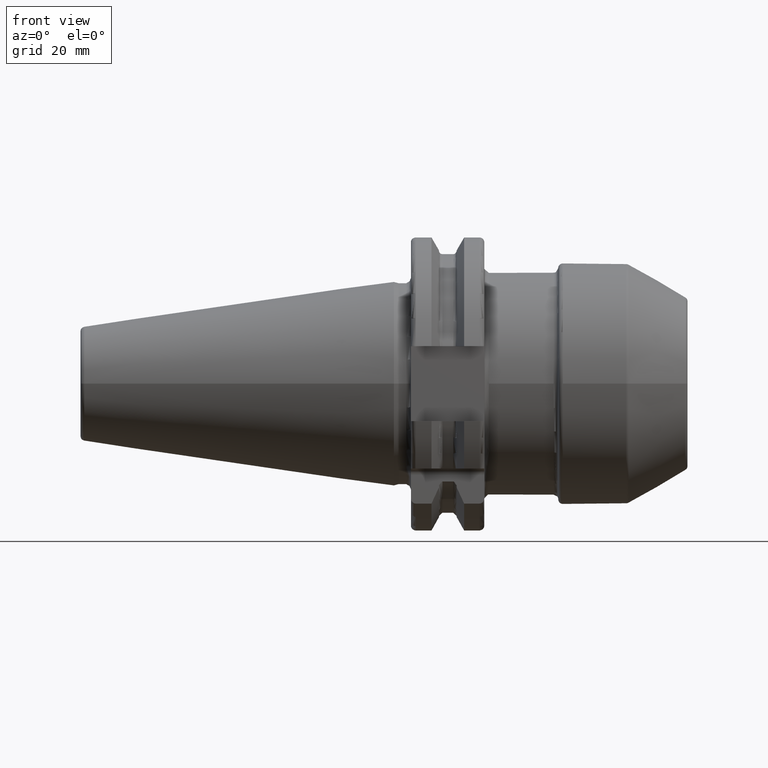
[diagram: clean part render]
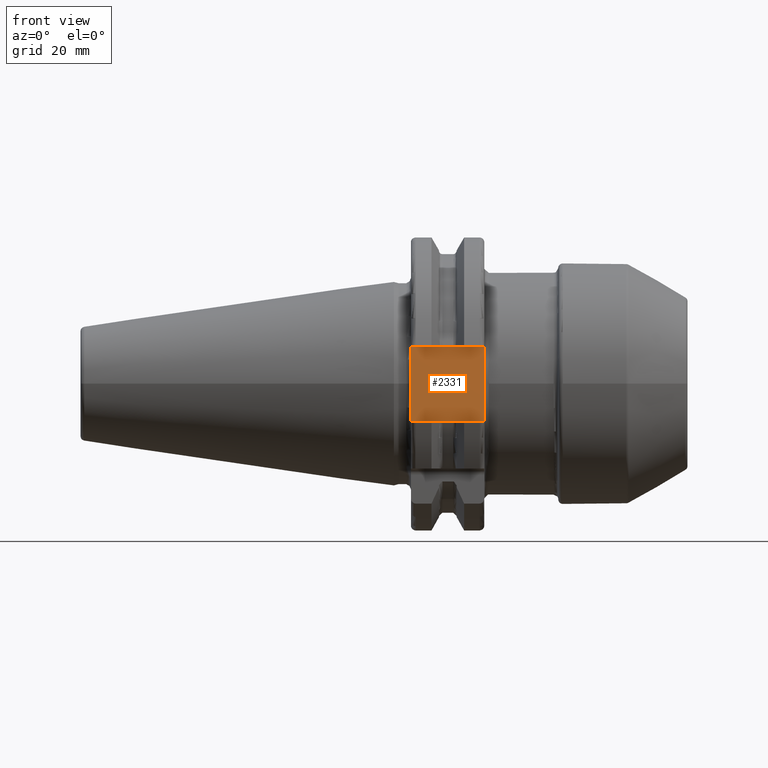
[diagram: same view with one face highlighted and labeled with its STEP entity id]
A machine part, front view. The second image highlights one B-rep face of the part: STEP entity #2331.
In plain terms, the highlighted planar face has unit normal (0, 1, 0).
Its self-contained STEP definition (entity closure, byte-faithful):
#421=DIRECTION('',(0.E0,7.172041620372E-7,9.999999999997E-1));
#422=VECTOR('',#421,5.364916844170E0);
#423=CARTESIAN_POINT('',(1.905E1,-2.485E1,-8.1E0));
#424=LINE('',#423,#422);
#446=DIRECTION('',(0.E0,-1.640553116549E-6,9.999999999987E-1));
#447=VECTOR('',#446,5.368549680093E0);
#448=CARTESIAN_POINT('',(1.905E1,-2.484999119261E1,2.731450319914E0));
#449=LINE('',#448,#447);
#463=DIRECTION('',(-1.E0,0.E0,0.E0));
#464=VECTOR('',#463,1.585E1);
#465=CARTESIAN_POINT('',(1.905E1,-2.485E1,-8.1E0));
#466=LINE('',#465,#464);
#477=CARTESIAN_POINT('',(1.905E1,-2.484999615226E1,-2.735083155832E0));
#478=CARTESIAN_POINT('',(1.905E1,-2.484999615226E1,-2.126118093178E0));
#479=CARTESIAN_POINT('',(1.906190707528E1,-2.485000062129E1,
-9.087239020907E-1));
#480=CARTESIAN_POINT('',(1.906190711665E1,-2.485000359708E1,9.099307624885E-1));
#481=CARTESIAN_POINT('',(1.905E1,-2.484999119261E1,2.122483506519E0));
#482=CARTESIAN_POINT('',(1.905E1,-2.484999119261E1,2.731450319914E0));
#703=DIRECTION('',(-1.E0,0.E0,0.E0));
#704=VECTOR('',#703,1.585E1);
#705=CARTESIAN_POINT('',(1.905E1,-2.485E1,8.1E0));
#706=LINE('',#705,#704);
#772=DIRECTION('',(0.E0,0.E0,1.E0));
#773=VECTOR('',#772,1.62E1);
#774=CARTESIAN_POINT('',(3.2E0,-2.485E1,-8.1E0));
#775=LINE('',#774,#773);
#1610=CARTESIAN_POINT('',(1.905E1,-2.485E1,-8.1E0));
#1612=VERTEX_POINT('',#1610);
#1614=CARTESIAN_POINT('',(1.905E1,-2.485E1,8.1E0));
#1616=VERTEX_POINT('',#1614);
#1638=CARTESIAN_POINT('',(3.2E0,-2.485E1,-8.1E0));
#1640=VERTEX_POINT('',#1638);
#1641=CARTESIAN_POINT('',(3.2E0,-2.485E1,8.1E0));
#1642=VERTEX_POINT('',#1641);
#1728=CARTESIAN_POINT('',(1.905E1,-2.484999615226E1,-2.735083155832E0));
#1729=VERTEX_POINT('',#1728);
#1730=CARTESIAN_POINT('',(1.905E1,-2.484999119261E1,2.731450319914E0));
#1731=VERTEX_POINT('',#1730);
#2314=CARTESIAN_POINT('',(1.905E1,-2.485E1,-8.1E0));
#2315=DIRECTION('',(0.E0,1.E0,0.E0));
#2316=DIRECTION('',(0.E0,0.E0,1.E0));
#2317=AXIS2_PLACEMENT_3D('',#2314,#2315,#2316);
#2318=PLANE('',#2317);
#2319=ORIENTED_EDGE('',*,*,#2302,.F.);
#2321=ORIENTED_EDGE('',*,*,#2320,.F.);
#2322=ORIENTED_EDGE('',*,*,#2277,.F.);
#2324=ORIENTED_EDGE('',*,*,#2323,.T.);
#2326=ORIENTED_EDGE('',*,*,#2325,.T.);
#2328=ORIENTED_EDGE('',*,*,#2327,.F.);
#2329=EDGE_LOOP('',(#2319,#2321,#2322,#2324,#2326,#2328));
#2330=FACE_OUTER_BOUND('',#2329,.F.);
#2331=ADVANCED_FACE('',(#2330),#2318,.F.);
#483=B_SPLINE_CURVE_WITH_KNOTS('',3,(#477,#478,#479,#480,#481,#482),
.UNSPECIFIED.,.F.,.F.,(4,1,1,4),(0.E0,3.333333333333E-1,6.666666666667E-1,1.E0),
.UNSPECIFIED.);
#2277=EDGE_CURVE('',#1612,#1729,#424,.T.);
#2302=EDGE_CURVE('',#1731,#1616,#449,.T.);
#2320=EDGE_CURVE('',#1729,#1731,#483,.T.);
#2323=EDGE_CURVE('',#1612,#1640,#466,.T.);
#2325=EDGE_CURVE('',#1640,#1642,#775,.T.);
#2327=EDGE_CURVE('',#1616,#1642,#706,.T.);